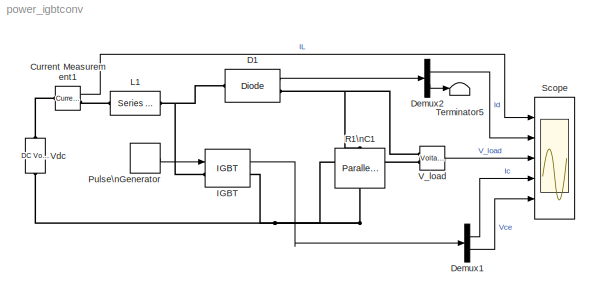
MODEL power_igbtconv
KIND model
BLOCK [Reference] Current Measurement1  REF=powerlib/Measurements/Current Measurement
  AttributesFormatString = \\n
  OutputType = Magnitude
  PSBequivalent = 0
  PhasorSimulation = off
  Ports = [0, 1, 0, 0, 0, 1, 1]
  ShowPortLabels = on
  SourceBlock = powerlib/Measurements/Current Measurement
  SourceType = Current Measurement
  Tag = PoWeRsYsTeMmEaSuReMeNt
BLOCK [Reference] D1  REF=powerlib/Power\nElectronics/Diode
  AttributesFormatString = \\n
  Cs = inf
  IC = 0
  Lon = 0.1e-6
  Measurements = on
  Ports = [0, 1, 0, 0, 0, 1, 1]
  Ron = 0.05
  Rs = 1e5
  ShowPortLabels = on
  SourceBlock = powerlib/Power\nElectronics/Diode
  SourceType = Diode
  Vf = 0.8
BLOCK [Demux] Demux1
  Outputs = 2
  Ports = [1, 2]
BLOCK [Demux] Demux2
  Outputs = 2
  Ports = [1, 2]
BLOCK [Reference] IGBT  REF=powerlib/Power\nElectronics/IGBT
  AttributesFormatString = \\n
  Cs = inf
  IC = 0
  Lon = 1e-6
  Measurements = on
  Ports = [1, 1, 0, 0, 0, 1, 1]
  Ron = 0.01
  Rs = 10000
  ShowPortLabels = on
  SourceBlock = powerlib/Power\nElectronics/IGBT
  SourceType = IGBT
  Tf = 1e-6
  Tt = 1e-6
  Vf = 1
BLOCK [Reference] L1  REF=powerlib/Elements/Series RLC Branch
  AttributesFormatString = \\n
  Capacitance = inf
  Inductance = 400e-6
  LConnTagsString = __new0
  LeftPortType = p1
  Measurements = None
  PhysicalDomain = powersysdomain
  Ports = [0, 0, 0, 0, 0, 1, 1]
  RConnTagsString = __new0
  Resistance = 0
  RightPortType = p1
  SourceBlock = powerlib/Elements/Series RLC Branch
  SourceType = Series RLC Branch
  SubClassName = unknown
BLOCK [DiscretePulseGenerator] Pulse\nGenerator
  Period = 100e-6
  Ports = [0, 1]
  PulseType = Time based
  PulseWidth = 50
BLOCK [Reference] R1\nC1  REF=powerlib/Elements/Parallel RLC Branch
  AttributesFormatString = \\n
  Capacitance = 25e-06
  Inductance = inf
  LConnTagsString = a
  LeftPortType = p1
  Measurements = None
  PhysicalDomain = powersysdomain
  Ports = [0, 0, 0, 0, 0, 1, 1]
  RConnTagsString = __new0
  Resistance = 50
  RightPortType = p1
  SourceBlock = powerlib/Elements/Parallel RLC Branch
  SourceType = Parallel RLC Branch
  SubClassName = unknown
BLOCK [Scope] Scope
  DataFormat = StructureWithTime
  MaxDataPoints = 50000
  NumInputPorts = 5
  Ports = [5]
  SaveName = var
  SaveToWorkspace = on
  TimeRange = 0.02
  YMax = 70~70~400~70~700
  YMin = -10~0~0~0~0
  ZoomMode = xonly
BLOCK [Terminator] Terminator5
BLOCK [Reference] V_load  REF=powerlib/Measurements/Voltage Measurement
  AttributesFormatString = \\n
  OutputType = Magnitude
  PSBequivalent = 0
  PhasorSimulation = off
  Ports = [0, 1, 0, 0, 0, 2]
  ShowPortLabels = on
  SourceBlock = powerlib/Measurements/Voltage Measurement
  SourceType = Voltage Measurement
  Tag = PoWeRsYsTeMmEaSuReMeNt
BLOCK [Reference] Vdc  REF=powerlib/Electrical\nSources/DC Voltage Source
  Amplitude = 100
  AttributesFormatString = \\n
  Description = source block
  Measurements = None
  Ports = [0, 0, 0, 0, 0, 1, 1]
  ShowPortLabels = on
  SourceBlock = powerlib/Electrical\nSources/DC Voltage Source
  SourceType = DC Voltage Source
LINE Current Measurement1:1 -> Scope:1
LINE D1:1 -> Demux2:1
LINE Demux1:1 -> Scope:4
LINE Demux1:2 -> Scope:5
LINE Demux2:1 -> Scope:2
LINE Demux2:2 -> Terminator5:1
LINE IGBT:1 -> Demux1:1
LINE Pulse\nGenerator:1 -> IGBT:1
LINE V_load:1 -> Scope:3
PLINE Current Measurement1:LConn1 -- Vdc:RConn1
PLINE Current Measurement1:RConn1 -- L1:LConn1
PNET net1: D1:LConn1 -- IGBT:LConn1 -- L1:RConn1
PNET net2: D1:RConn1 -- R1\nC1:LConn1 -- V_load:LConn1
PNET net3: IGBT:RConn1 -- R1\nC1:RConn1 -- V_load:LConn2 -- Vdc:LConn1
note: PNET lines group multi-terminal physical nets as a canonical sorted terminal list (undirected conserving connections); 2-terminal nets keep the pairwise PLINE form
